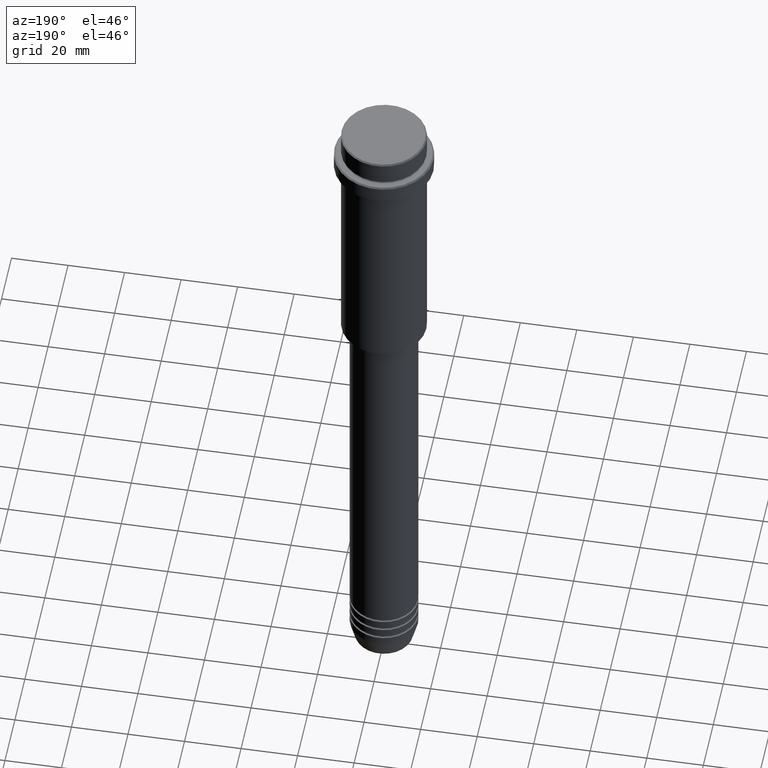
[diagram: clean part render]
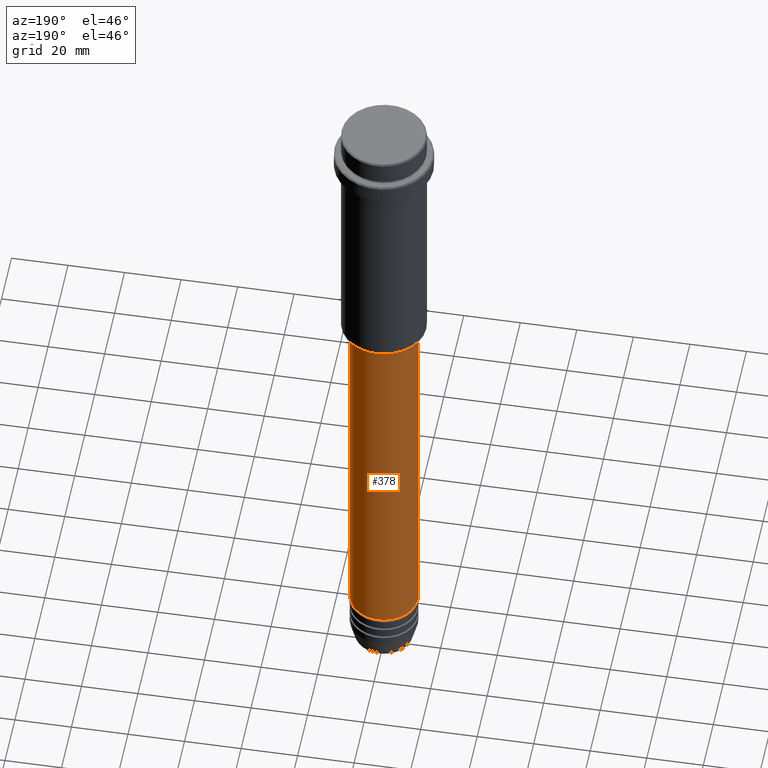
[diagram: same view with one face highlighted and labeled with its STEP entity id]
A machine part, auxiliary view. The second image highlights one B-rep face of the part: STEP entity #378.
In plain terms, the highlighted cylindrical surface (edge-blend (fillet) strip) has radius 12 mm, axis along (-0, -0, 1).
Its self-contained STEP definition (entity closure, byte-faithful):
#34 = VERTEX_POINT ( 'NONE', #1183 ) ;
#40 = CIRCLE ( 'NONE', #769, 11.99999999999999822 ) ;
#172 = FACE_OUTER_BOUND ( 'NONE', #269, .T. ) ;
#183 = CYLINDRICAL_SURFACE ( 'NONE', #508, 12.00000000000000000 ) ;
#189 = ORIENTED_EDGE ( 'NONE', *, *, #871, .F. ) ;
#193 = CARTESIAN_POINT ( 'NONE',  ( 0.000000000000000000, 0.000000000000000000, -96.00000000000000000 ) ) ;
#245 = AXIS2_PLACEMENT_3D ( 'NONE', #1155, #1168, #587 ) ;
#269 = EDGE_LOOP ( 'NONE', ( #796, #699, #189, #1226 ) ) ;
#279 = CARTESIAN_POINT ( 'NONE',  ( 12.00000000000000000, 0.000000000000000000, -230.9999999999998863 ) ) ;
#287 = VECTOR ( 'NONE', #426, 1000.000000000000000 ) ;
#300 = DIRECTION ( 'NONE',  ( 1.000000000000000000, 0.000000000000000000, 0.000000000000000000 ) ) ;
#349 = VERTEX_POINT ( 'NONE', #1273 ) ;
#378 = ADVANCED_FACE ( 'NONE', ( #172 ), #183, .T. ) ;
#416 = CARTESIAN_POINT ( 'NONE',  ( 11.99999999999999822, 0.000000000000000000, -96.00000000000000000 ) ) ;
#426 = DIRECTION ( 'NONE',  ( -0.000000000000000000, -0.000000000000000000, 1.000000000000000000 ) ) ;
#498 = VERTEX_POINT ( 'NONE', #416 ) ;
#508 = AXIS2_PLACEMENT_3D ( 'NONE', #598, #1282, #300 ) ;
#587 = DIRECTION ( 'NONE',  ( 1.000000000000000000, 0.000000000000000000, 0.000000000000000000 ) ) ;
#598 = CARTESIAN_POINT ( 'NONE',  ( 0.000000000000000000, 0.000000000000000000, 0.000000000000000000 ) ) ;
#634 = LINE ( 'NONE', #1078, #287 ) ;
#645 = CARTESIAN_POINT ( 'NONE',  ( 12.00000000000000000, 0.000000000000000000, 0.000000000000000000 ) ) ;
#699 = ORIENTED_EDGE ( 'NONE', *, *, #1417, .T. ) ;
#706 = DIRECTION ( 'NONE',  ( -0.000000000000000000, -0.000000000000000000, 1.000000000000000000 ) ) ;
#721 = CIRCLE ( 'NONE', #245, 12.00000000000000000 ) ;
#769 = AXIS2_PLACEMENT_3D ( 'NONE', #193, #706, #1151 ) ;
#796 = ORIENTED_EDGE ( 'NONE', *, *, #1170, .T. ) ;
#871 = EDGE_CURVE ( 'NONE', #498, #349, #40, .T. ) ;
#964 = LINE ( 'NONE', #645, #1258 ) ;
#1078 = CARTESIAN_POINT ( 'NONE',  ( -12.00000000000000000, 1.469576158976823947E-15, 0.000000000000000000 ) ) ;
#1151 = DIRECTION ( 'NONE',  ( 1.000000000000000000, 0.000000000000000000, 0.000000000000000000 ) ) ;
#1155 = CARTESIAN_POINT ( 'NONE',  ( 0.000000000000000000, 0.000000000000000000, -230.9999999999998863 ) ) ;
#1168 = DIRECTION ( 'NONE',  ( -0.000000000000000000, -0.000000000000000000, 1.000000000000000000 ) ) ;
#1170 = EDGE_CURVE ( 'NONE', #1294, #34, #721, .T. ) ;
#1183 = CARTESIAN_POINT ( 'NONE',  ( -12.00000000000000000, 1.469576158976823947E-15, -230.9999999999998863 ) ) ;
#1226 = ORIENTED_EDGE ( 'NONE', *, *, #1372, .F. ) ;
#1258 = VECTOR ( 'NONE', #1402, 1000.000000000000000 ) ;
#1273 = CARTESIAN_POINT ( 'NONE',  ( -11.99999999999999822, 1.469576158976823750E-15, -96.00000000000000000 ) ) ;
#1282 = DIRECTION ( 'NONE',  ( -0.000000000000000000, -0.000000000000000000, 1.000000000000000000 ) ) ;
#1294 = VERTEX_POINT ( 'NONE', #279 ) ;
#1372 = EDGE_CURVE ( 'NONE', #1294, #498, #964, .T. ) ;
#1402 = DIRECTION ( 'NONE',  ( -0.000000000000000000, -0.000000000000000000, 1.000000000000000000 ) ) ;
#1417 = EDGE_CURVE ( 'NONE', #34, #349, #634, .T. ) ;